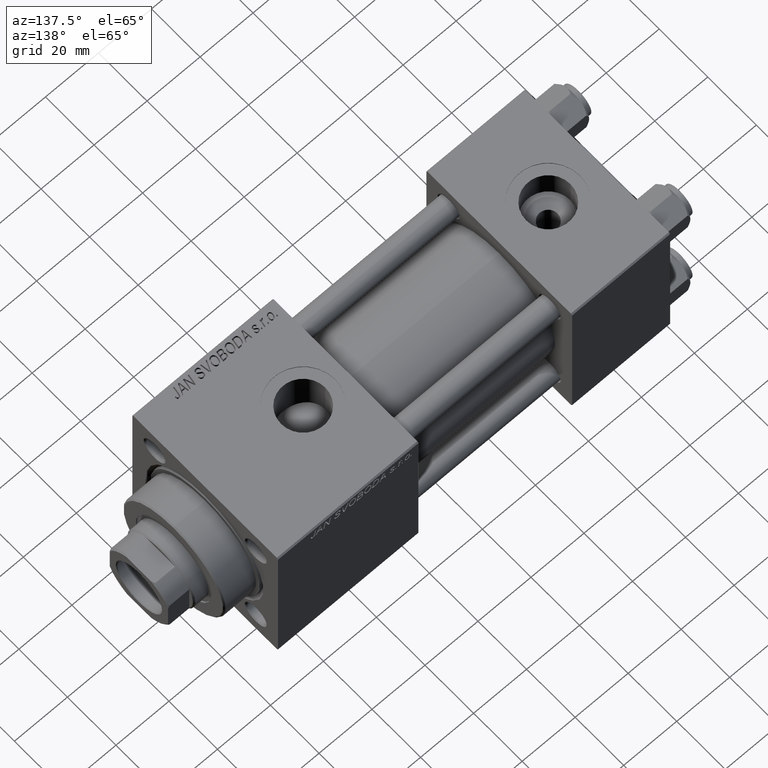
[diagram: clean part render]
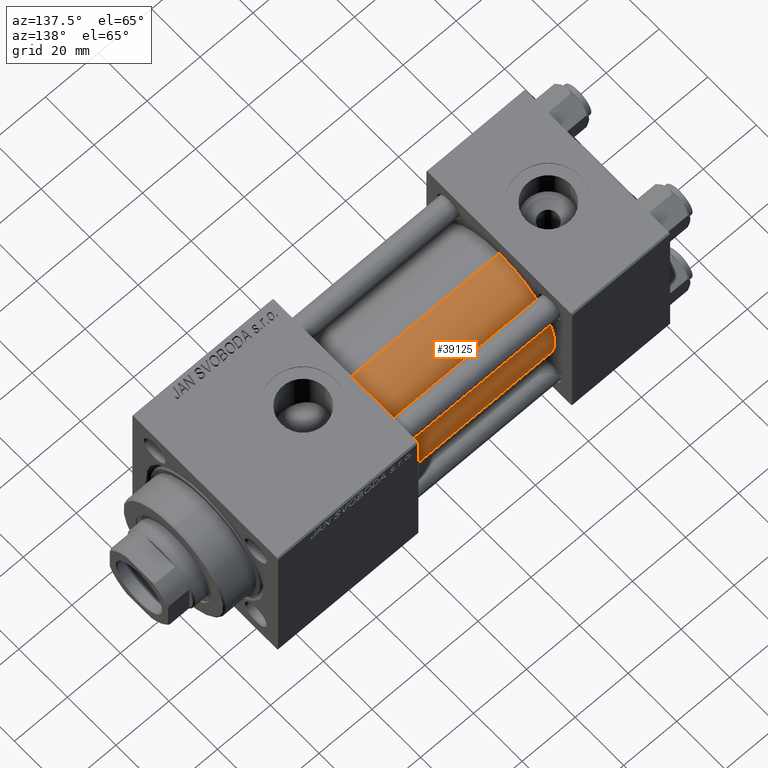
[diagram: same view with one face highlighted and labeled with its STEP entity id]
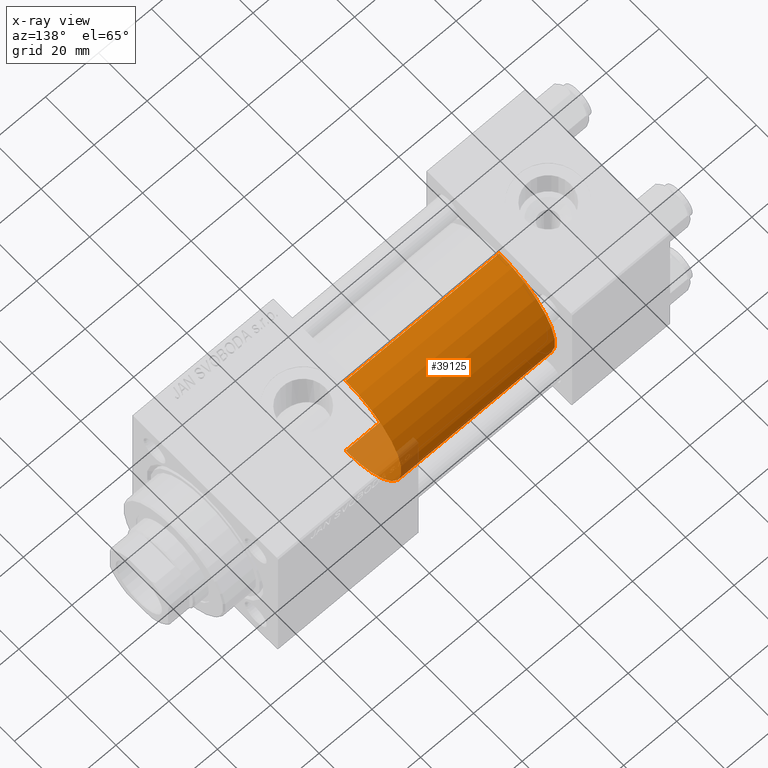
[diagram: x-ray of the same camera — body ghosted, the highlighted face saturated]
A machine part, auxiliary view. The second image highlights one B-rep face of the part: STEP entity #39125.
The next image is the same camera in x-ray: the body ghosted, the highlighted face saturated — about 10% of this face is hidden behind the body in this view.
In plain terms, the highlighted cylindrical surface (partial cylindrical patch) has radius 23 mm, axis along (-1, -0, -0).
Its self-contained STEP definition (entity closure, byte-faithful):
#791 = CARTESIAN_POINT ( 'NONE',  ( 37.00000000000000000, -2.602085213965210642E-15, 23.00000000000000000 ) ) ;
#3009 = ORIENTED_EDGE ( 'NONE', *, *, #6290, .F. ) ;
#3011 = CARTESIAN_POINT ( 'NONE',  ( 95.00000000000000000, -2.602085213965210642E-15, 0.000000000000000000 ) ) ;
#3158 = CIRCLE ( 'NONE', #8845, 23.00000000000000000 ) ;
#4718 = AXIS2_PLACEMENT_3D ( 'NONE', #22726, #15095, #46092 ) ;
#6290 = EDGE_CURVE ( 'NONE', #24412, #26504, #28855, .T. ) ;
#7911 = CARTESIAN_POINT ( 'NONE',  ( 95.00000000000000000, 2.146024240737012665E-16, -23.00000000000000000 ) ) ;
#8526 = VECTOR ( 'NONE', #39542, 1000.000000000000000 ) ;
#8654 = LINE ( 'NONE', #7911, #13419 ) ;
#8845 = AXIS2_PLACEMENT_3D ( 'NONE', #3011, #49487, #38579 ) ;
#10145 = EDGE_CURVE ( 'NONE', #47544, #46483, #8654, .T. ) ;
#11184 = DIRECTION ( 'NONE',  ( 0.000000000000000000, 0.000000000000000000, 1.000000000000000000 ) ) ;
#13419 = VECTOR ( 'NONE', #16529, 1000.000000000000000 ) ;
#13663 = CIRCLE ( 'NONE', #18513, 23.00000000000000000 ) ;
#14842 = CYLINDRICAL_SURFACE ( 'NONE', #4718, 23.00000000000000000 ) ;
#15095 = DIRECTION ( 'NONE',  ( -1.000000000000000000, -0.000000000000000000, -0.000000000000000000 ) ) ;
#15492 = DIRECTION ( 'NONE',  ( 1.000000000000000000, -0.000000000000000000, 0.000000000000000000 ) ) ;
#16529 = DIRECTION ( 'NONE',  ( -1.000000000000000000, -0.000000000000000000, -0.000000000000000000 ) ) ;
#17822 = EDGE_CURVE ( 'NONE', #46483, #26504, #13663, .T. ) ;
#18513 = AXIS2_PLACEMENT_3D ( 'NONE', #29978, #15492, #11184 ) ;
#18800 = EDGE_CURVE ( 'NONE', #47544, #24412, #3158, .T. ) ;
#22726 = CARTESIAN_POINT ( 'NONE',  ( 95.00000000000000000, -2.602085213965210642E-15, 0.000000000000000000 ) ) ;
#23108 = ORIENTED_EDGE ( 'NONE', *, *, #17822, .T. ) ;
#23206 = ORIENTED_EDGE ( 'NONE', *, *, #18800, .F. ) ;
#24412 = VERTEX_POINT ( 'NONE', #35895 ) ;
#26504 = VERTEX_POINT ( 'NONE', #791 ) ;
#28316 = CARTESIAN_POINT ( 'NONE',  ( 95.00000000000000000, 2.146024240737012665E-16, -23.00000000000000000 ) ) ;
#28855 = LINE ( 'NONE', #35985, #8526 ) ;
#29978 = CARTESIAN_POINT ( 'NONE',  ( 37.00000000000000000, -2.602085213965210642E-15, 0.000000000000000000 ) ) ;
#30822 = EDGE_LOOP ( 'NONE', ( #23206, #34032, #23108, #3009 ) ) ;
#34032 = ORIENTED_EDGE ( 'NONE', *, *, #10145, .T. ) ;
#35895 = CARTESIAN_POINT ( 'NONE',  ( 95.00000000000000000, -2.602085213965210642E-15, 23.00000000000000000 ) ) ;
#35985 = CARTESIAN_POINT ( 'NONE',  ( 95.00000000000000000, -2.602085213965210642E-15, 23.00000000000000000 ) ) ;
#37650 = CARTESIAN_POINT ( 'NONE',  ( 37.00000000000000000, 2.146024240737012665E-16, -23.00000000000000000 ) ) ;
#38579 = DIRECTION ( 'NONE',  ( 0.000000000000000000, 0.000000000000000000, -1.000000000000000000 ) ) ;
#39125 = ADVANCED_FACE ( 'NONE', ( #49651 ), #14842, .T. ) ;
#39542 = DIRECTION ( 'NONE',  ( -1.000000000000000000, -0.000000000000000000, -0.000000000000000000 ) ) ;
#46092 = DIRECTION ( 'NONE',  ( 0.000000000000000000, 0.000000000000000000, 1.000000000000000000 ) ) ;
#46483 = VERTEX_POINT ( 'NONE', #37650 ) ;
#47544 = VERTEX_POINT ( 'NONE', #28316 ) ;
#49487 = DIRECTION ( 'NONE',  ( 1.000000000000000000, 0.000000000000000000, 0.000000000000000000 ) ) ;
#49651 = FACE_OUTER_BOUND ( 'NONE', #30822, .T. ) ;